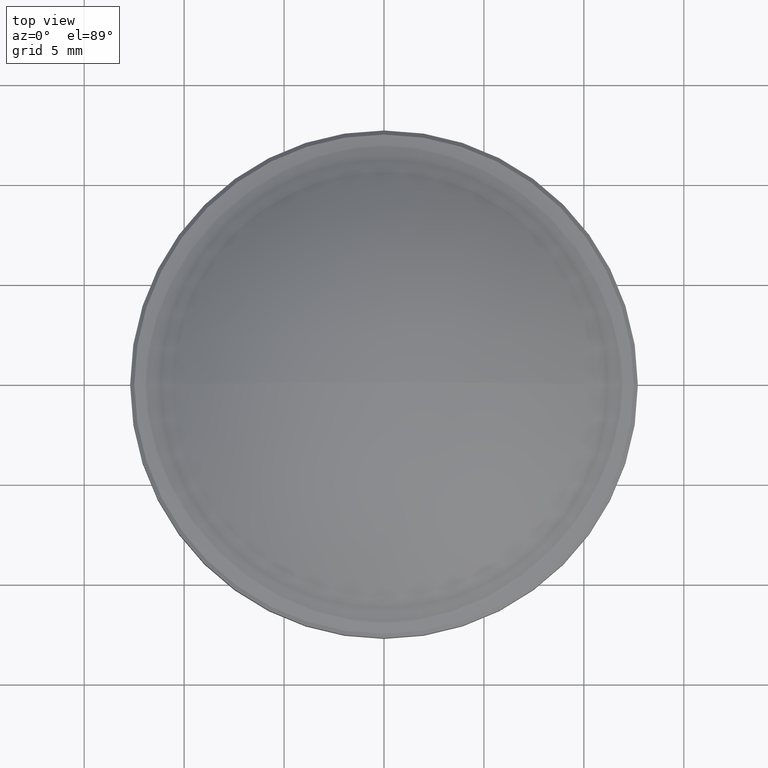
[diagram: clean part render]
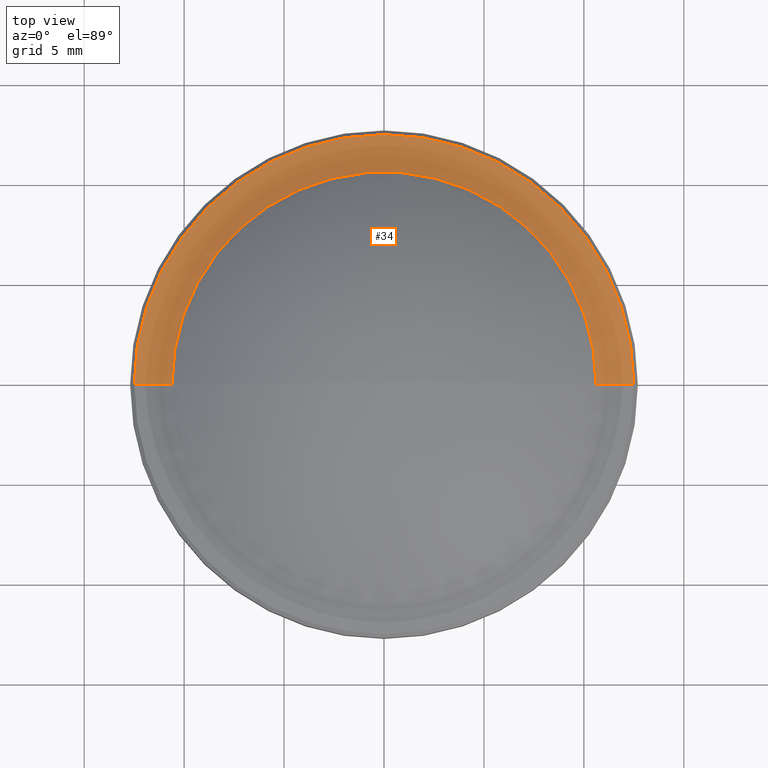
[diagram: same view with one face highlighted and labeled with its STEP entity id]
A machine part, top view. The second image highlights one B-rep face of the part: STEP entity #34.
In plain terms, the highlighted toroidal blend (fillet) surface has major radius 12.7 mm and minor (blend) radius 3.5975 mm.
Its self-contained STEP definition (entity closure, byte-faithful):
#12 = AXIS2_PLACEMENT_3D ( 'NONE', #270, #55, #246 ) ;
#17 = DIRECTION ( 'NONE',  ( -1.224646799147353207E-16, -0.000000000000000000, -1.000000000000000000 ) ) ;
#19 = ORIENTED_EDGE ( 'NONE', *, *, #244, .T. ) ;
#20 = CARTESIAN_POINT ( 'NONE',  ( -10.60895851618369967, 0.000000000000000000, 3.600121168435617580 ) ) ;
#34 = ADVANCED_FACE ( 'NONE', ( #228 ), #196, .F. ) ;
#46 = VERTEX_POINT ( 'NONE', #305 ) ;
#55 = DIRECTION ( 'NONE',  ( 1.224646799147353207E-16, -0.000000000000000000, 1.000000000000000000 ) ) ;
#63 = CARTESIAN_POINT ( 'NONE',  ( -12.69999999999999929, 0.000000000000000000, 6.527496314496318064 ) ) ;
#66 = CARTESIAN_POINT ( 'NONE',  ( -12.49410307714051882, 0.000000000000000000, 2.935896922863991954 ) ) ;
#77 = AXIS2_PLACEMENT_3D ( 'NONE', #202, #253, #284 ) ;
#93 = EDGE_CURVE ( 'NONE', #277, #181, #157, .T. ) ;
#106 = EDGE_CURVE ( 'NONE', #181, #174, #107, .T. ) ;
#107 = CIRCLE ( 'NONE', #315, 10.60895851618369967 ) ;
#132 = DIRECTION ( 'NONE',  ( -1.224646799147353207E-16, -0.000000000000000000, -1.000000000000000000 ) ) ;
#140 = DIRECTION ( 'NONE',  ( 0.000000000000000000, 0.000000000000000000, -1.000000000000000000 ) ) ;
#157 = CIRCLE ( 'NONE', #241, 3.597496314496318792 ) ;
#159 = CARTESIAN_POINT ( 'NONE',  ( 0.000000000000000000, 0.000000000000000000, 6.527496314496316288 ) ) ;
#165 = CIRCLE ( 'NONE', #77, 3.597496314496318348 ) ;
#166 = CARTESIAN_POINT ( 'NONE',  ( 8.206617439655612360E-17, 0.000000000000000000, 3.600121168435616248 ) ) ;
#167 = CARTESIAN_POINT ( 'NONE',  ( 10.60895851618369967, 1.414654521538122764E-15, 3.600121168435614916 ) ) ;
#174 = VERTEX_POINT ( 'NONE', #167 ) ;
#181 = VERTEX_POINT ( 'NONE', #20 ) ;
#196 = TOROIDAL_SURFACE ( 'NONE', #298, 12.69999999999999929, 3.597496314496318792 ) ;
#202 = CARTESIAN_POINT ( 'NONE',  ( 12.69999999999999929, 1.555301434917138433E-15, 6.527496314496314511 ) ) ;
#203 = ORIENTED_EDGE ( 'NONE', *, *, #93, .T. ) ;
#213 = DIRECTION ( 'NONE',  ( -1.000000000000000000, 0.000000000000000000, 1.226362234330445841E-16 ) ) ;
#228 = FACE_OUTER_BOUND ( 'NONE', #267, .T. ) ;
#241 = AXIS2_PLACEMENT_3D ( 'NONE', #63, #292, #140 ) ;
#244 = EDGE_CURVE ( 'NONE', #46, #277, #304, .T. ) ;
#246 = DIRECTION ( 'NONE',  ( 1.000000000000000000, 0.000000000000000000, -1.388433779733579211E-16 ) ) ;
#253 = DIRECTION ( 'NONE',  ( -1.224646799147353207E-16, 1.000000000000000000, 1.499759782661857608E-32 ) ) ;
#267 = EDGE_LOOP ( 'NONE', ( #317, #19, #203, #306 ) ) ;
#270 = CARTESIAN_POINT ( 'NONE',  ( -4.398440698782108916E-16, 0.000000000000000000, 2.935896922863990177 ) ) ;
#277 = VERTEX_POINT ( 'NONE', #66 ) ;
#282 = EDGE_CURVE ( 'NONE', #46, #174, #165, .T. ) ;
#284 = DIRECTION ( 'NONE',  ( -1.000000000000000000, -1.224646799147353700E-16, 0.000000000000000000 ) ) ;
#292 = DIRECTION ( 'NONE',  ( 0.000000000000000000, -1.000000000000000000, 0.000000000000000000 ) ) ;
#298 = AXIS2_PLACEMENT_3D ( 'NONE', #159, #132, #307 ) ;
#304 = CIRCLE ( 'NONE', #12, 12.49410307713541712 ) ;
#305 = CARTESIAN_POINT ( 'NONE',  ( 12.49410307714051882, 1.530086334163723081E-15, 2.935896922863988845 ) ) ;
#306 = ORIENTED_EDGE ( 'NONE', *, *, #106, .T. ) ;
#307 = DIRECTION ( 'NONE',  ( -1.000000000000000000, 0.000000000000000000, 1.224646799147353207E-16 ) ) ;
#315 = AXIS2_PLACEMENT_3D ( 'NONE', #166, #17, #213 ) ;
#317 = ORIENTED_EDGE ( 'NONE', *, *, #282, .F. ) ;